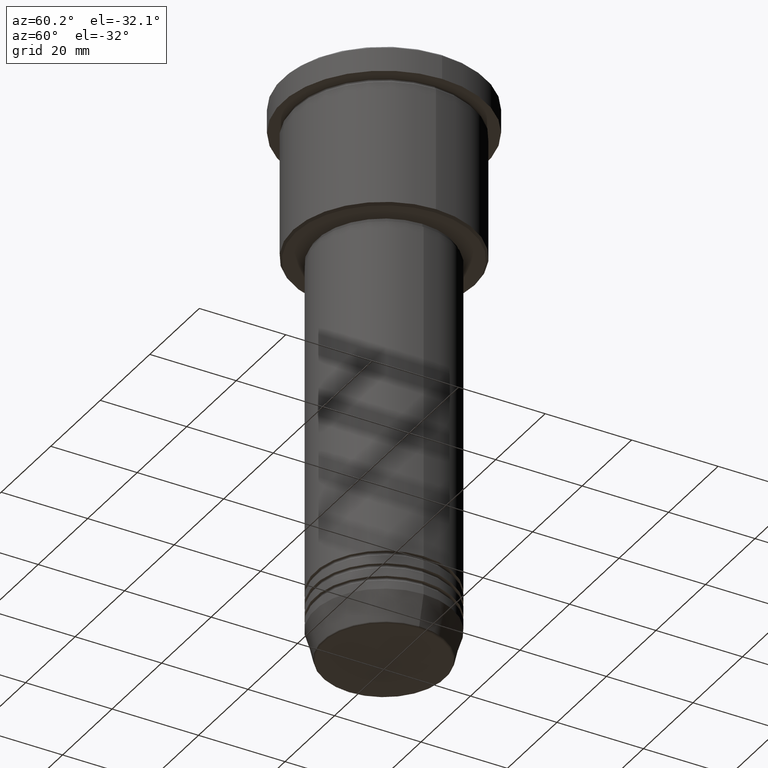
[diagram: clean part render]
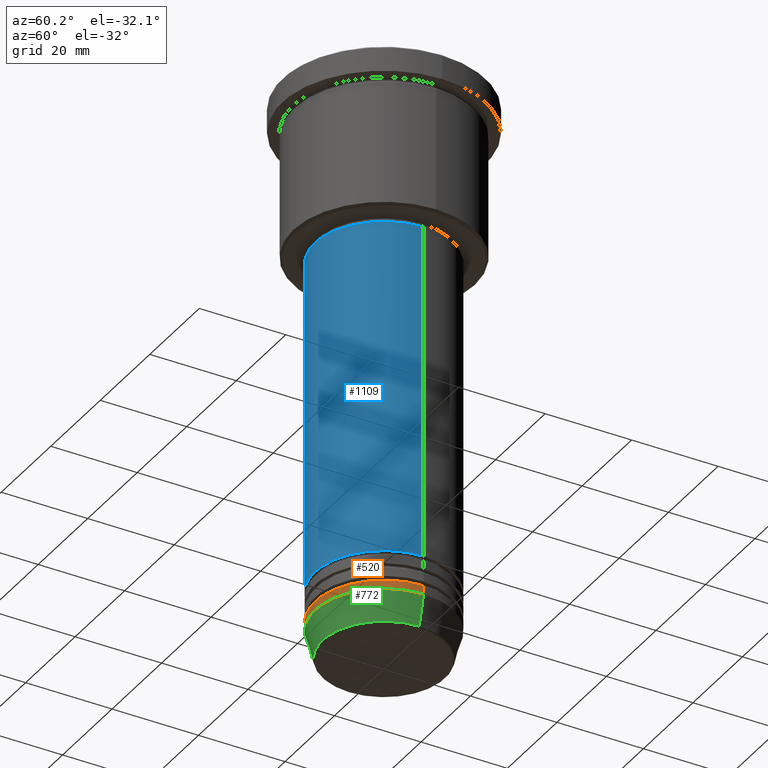
[diagram: same view with three faces highlighted in distinct colors, each labeled with its STEP entity id]
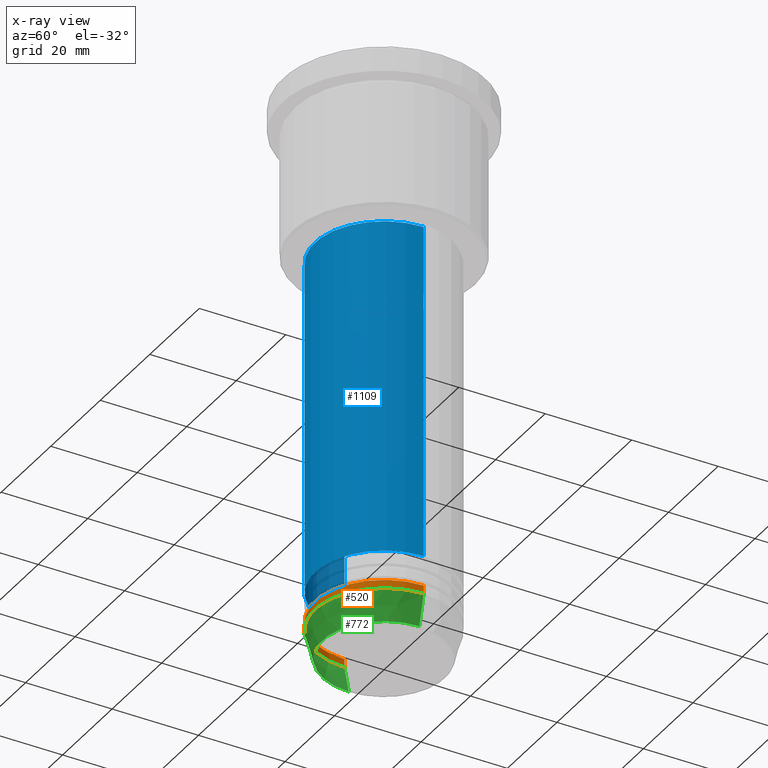
[diagram: x-ray of the same camera — body ghosted, the three highlighted faces saturated]
A machine part, auxiliary view with three faces highlighted in distinct colors.
The next image is the same camera in x-ray (body ghosted, the three faces saturated) — at least one of them is partly hidden behind the body in this view.
Their STEP definitions:

[orange] entity #520 — the highlighted cylindrical surface (partial cylindrical patch) has radius 16 mm, axis along (-0, -0, 1).
#17 = CARTESIAN_POINT ( 'NONE',  ( -16.00000000000000000, 1.959434878635765131E-15, 0.000000000000000000 ) ) ;
#39 = AXIS2_PLACEMENT_3D ( 'NONE', #535, #1161, #63 ) ;
#60 = EDGE_LOOP ( 'NONE', ( #704, #346, #579, #713 ) ) ;
#63 = DIRECTION ( 'NONE',  ( 1.000000000000000000, 0.000000000000000000, 0.000000000000000000 ) ) ;
#144 = EDGE_CURVE ( 'NONE', #538, #720, #246, .T. ) ;
#162 = EDGE_CURVE ( 'NONE', #978, #720, #839, .T. ) ;
#173 = FACE_OUTER_BOUND ( 'NONE', #60, .T. ) ;
#187 = EDGE_CURVE ( 'NONE', #693, #538, #651, .T. ) ;
#189 = CARTESIAN_POINT ( 'NONE',  ( -16.00000000000000000, 1.959434878635765131E-15, -122.0000000000000000 ) ) ;
#213 = DIRECTION ( 'NONE',  ( -0.000000000000000000, -0.000000000000000000, 1.000000000000000000 ) ) ;
#215 = CARTESIAN_POINT ( 'NONE',  ( 16.00000000000000000, 0.000000000000000000, -124.0000000000000000 ) ) ;
#224 = CIRCLE ( 'NONE', #39, 16.00000000000000000 ) ;
#246 = CIRCLE ( 'NONE', #878, 16.00000000000000000 ) ;
#346 = ORIENTED_EDGE ( 'NONE', *, *, #411, .T. ) ;
#365 = DIRECTION ( 'NONE',  ( 1.000000000000000000, 0.000000000000000000, 0.000000000000000000 ) ) ;
#367 = VECTOR ( 'NONE', #475, 1000.000000000000000 ) ;
#411 = EDGE_CURVE ( 'NONE', #693, #978, #224, .T. ) ;
#422 = CARTESIAN_POINT ( 'NONE',  ( 16.00000000000000000, 0.000000000000000000, -122.0000000000000000 ) ) ;
#469 = CARTESIAN_POINT ( 'NONE',  ( 16.00000000000000000, 0.000000000000000000, 0.000000000000000000 ) ) ;
#475 = DIRECTION ( 'NONE',  ( -0.000000000000000000, -0.000000000000000000, 1.000000000000000000 ) ) ;
#520 = ADVANCED_FACE ( 'NONE', ( #173 ), #816, .T. ) ;
#535 = CARTESIAN_POINT ( 'NONE',  ( 0.000000000000000000, 0.000000000000000000, -124.0000000000000000 ) ) ;
#538 = VERTEX_POINT ( 'NONE', #189 ) ;
#579 = ORIENTED_EDGE ( 'NONE', *, *, #162, .T. ) ;
#583 = CARTESIAN_POINT ( 'NONE',  ( -16.00000000000000000, 1.959434878635765131E-15, -124.0000000000000000 ) ) ;
#651 = LINE ( 'NONE', #17, #367 ) ;
#693 = VERTEX_POINT ( 'NONE', #583 ) ;
#704 = ORIENTED_EDGE ( 'NONE', *, *, #187, .F. ) ;
#713 = ORIENTED_EDGE ( 'NONE', *, *, #144, .F. ) ;
#720 = VERTEX_POINT ( 'NONE', #422 ) ;
#807 = VECTOR ( 'NONE', #213, 1000.000000000000000 ) ;
#816 = CYLINDRICAL_SURFACE ( 'NONE', #830, 16.00000000000000000 ) ;
#823 = CARTESIAN_POINT ( 'NONE',  ( 0.000000000000000000, 0.000000000000000000, 0.000000000000000000 ) ) ;
#830 = AXIS2_PLACEMENT_3D ( 'NONE', #823, #1181, #365 ) ;
#839 = LINE ( 'NONE', #469, #807 ) ;
#878 = AXIS2_PLACEMENT_3D ( 'NONE', #1119, #1100, #1032 ) ;
#978 = VERTEX_POINT ( 'NONE', #215 ) ;
#1032 = DIRECTION ( 'NONE',  ( 1.000000000000000000, 0.000000000000000000, 0.000000000000000000 ) ) ;
#1100 = DIRECTION ( 'NONE',  ( -0.000000000000000000, -0.000000000000000000, 1.000000000000000000 ) ) ;
#1119 = CARTESIAN_POINT ( 'NONE',  ( 0.000000000000000000, 0.000000000000000000, -122.0000000000000000 ) ) ;
#1161 = DIRECTION ( 'NONE',  ( -0.000000000000000000, -0.000000000000000000, 1.000000000000000000 ) ) ;
#1181 = DIRECTION ( 'NONE',  ( -0.000000000000000000, -0.000000000000000000, 1.000000000000000000 ) ) ;

[blue] entity #1109 — the highlighted cylindrical surface (partial cylindrical patch) has radius 16 mm, axis along (-0, -0, 1).
#28 = DIRECTION ( 'NONE',  ( 1.000000000000000000, 0.000000000000000000, 0.000000000000000000 ) ) ;
#85 = EDGE_LOOP ( 'NONE', ( #788, #1083, #952, #1044 ) ) ;
#153 = CIRCLE ( 'NONE', #550, 16.00000000000000000 ) ;
#174 = CIRCLE ( 'NONE', #764, 16.00000000000000000 ) ;
#190 = VECTOR ( 'NONE', #356, 1000.000000000000000 ) ;
#239 = CARTESIAN_POINT ( 'NONE',  ( 16.00000000000000000, 0.000000000000000000, 0.000000000000000000 ) ) ;
#304 = VECTOR ( 'NONE', #592, 1000.000000000000000 ) ;
#339 = VERTEX_POINT ( 'NONE', #412 ) ;
#356 = DIRECTION ( 'NONE',  ( -0.000000000000000000, -0.000000000000000000, 1.000000000000000000 ) ) ;
#372 = DIRECTION ( 'NONE',  ( -0.000000000000000000, -0.000000000000000000, 1.000000000000000000 ) ) ;
#412 = CARTESIAN_POINT ( 'NONE',  ( -16.00000000000000000, 1.959434878635765131E-15, -37.00000000000000000 ) ) ;
#452 = FACE_OUTER_BOUND ( 'NONE', #85, .T. ) ;
#463 = DIRECTION ( 'NONE',  ( 1.000000000000000000, 0.000000000000000000, 0.000000000000000000 ) ) ;
#467 = CARTESIAN_POINT ( 'NONE',  ( 0.000000000000000000, 0.000000000000000000, 0.000000000000000000 ) ) ;
#503 = CARTESIAN_POINT ( 'NONE',  ( -16.00000000000000000, 1.959434878635765131E-15, 0.000000000000000000 ) ) ;
#514 = CARTESIAN_POINT ( 'NONE',  ( 0.000000000000000000, 0.000000000000000000, -114.9999999999999574 ) ) ;
#534 = EDGE_CURVE ( 'NONE', #1157, #770, #153, .T. ) ;
#549 = CYLINDRICAL_SURFACE ( 'NONE', #845, 16.00000000000000000 ) ;
#550 = AXIS2_PLACEMENT_3D ( 'NONE', #514, #650, #28 ) ;
#563 = CARTESIAN_POINT ( 'NONE',  ( -16.00000000000000000, 1.959434878635765131E-15, -114.9999999999999574 ) ) ;
#592 = DIRECTION ( 'NONE',  ( -0.000000000000000000, -0.000000000000000000, 1.000000000000000000 ) ) ;
#620 = EDGE_CURVE ( 'NONE', #1157, #339, #942, .T. ) ;
#650 = DIRECTION ( 'NONE',  ( -0.000000000000000000, -0.000000000000000000, 1.000000000000000000 ) ) ;
#696 = VERTEX_POINT ( 'NONE', #778 ) ;
#722 = CARTESIAN_POINT ( 'NONE',  ( 16.00000000000000000, 0.000000000000000000, -114.9999999999999574 ) ) ;
#744 = CARTESIAN_POINT ( 'NONE',  ( 0.000000000000000000, 0.000000000000000000, -37.00000000000000000 ) ) ;
#764 = AXIS2_PLACEMENT_3D ( 'NONE', #744, #372, #1178 ) ;
#770 = VERTEX_POINT ( 'NONE', #722 ) ;
#778 = CARTESIAN_POINT ( 'NONE',  ( 16.00000000000000000, 0.000000000000000000, -37.00000000000000000 ) ) ;
#788 = ORIENTED_EDGE ( 'NONE', *, *, #620, .F. ) ;
#793 = EDGE_CURVE ( 'NONE', #770, #696, #886, .T. ) ;
#821 = DIRECTION ( 'NONE',  ( -0.000000000000000000, -0.000000000000000000, 1.000000000000000000 ) ) ;
#845 = AXIS2_PLACEMENT_3D ( 'NONE', #467, #821, #463 ) ;
#886 = LINE ( 'NONE', #239, #190 ) ;
#942 = LINE ( 'NONE', #503, #304 ) ;
#952 = ORIENTED_EDGE ( 'NONE', *, *, #793, .T. ) ;
#1044 = ORIENTED_EDGE ( 'NONE', *, *, #1056, .F. ) ;
#1056 = EDGE_CURVE ( 'NONE', #339, #696, #174, .T. ) ;
#1083 = ORIENTED_EDGE ( 'NONE', *, *, #534, .T. ) ;
#1109 = ADVANCED_FACE ( 'NONE', ( #452 ), #549, .T. ) ;
#1157 = VERTEX_POINT ( 'NONE', #563 ) ;
#1178 = DIRECTION ( 'NONE',  ( 1.000000000000000000, 0.000000000000000000, 0.000000000000000000 ) ) ;

[green] entity #772 — the highlighted conical surface has half-angle 15 deg.
#39 = AXIS2_PLACEMENT_3D ( 'NONE', #535, #1161, #63 ) ;
#61 = DIRECTION ( 'NONE',  ( -0.000000000000000000, -0.000000000000000000, 1.000000000000000000 ) ) ;
#63 = DIRECTION ( 'NONE',  ( 1.000000000000000000, 0.000000000000000000, 0.000000000000000000 ) ) ;
#72 = DIRECTION ( 'NONE',  ( 1.000000000000000000, 0.000000000000000000, 0.000000000000000000 ) ) ;
#182 = DIRECTION ( 'NONE',  ( 0.2588190451025213501, 0.000000000000000000, 0.9659258262890680902 ) ) ;
#215 = CARTESIAN_POINT ( 'NONE',  ( 16.00000000000000000, 0.000000000000000000, -124.0000000000000000 ) ) ;
#224 = CIRCLE ( 'NONE', #39, 16.00000000000000000 ) ;
#226 = VECTOR ( 'NONE', #182, 1000.000000000000000 ) ;
#253 = DIRECTION ( 'NONE',  ( -0.000000000000000000, -0.000000000000000000, 1.000000000000000000 ) ) ;
#260 = ORIENTED_EDGE ( 'NONE', *, *, #1031, .F. ) ;
#318 = ORIENTED_EDGE ( 'NONE', *, *, #411, .F. ) ;
#411 = EDGE_CURVE ( 'NONE', #693, #978, #224, .T. ) ;
#415 = ORIENTED_EDGE ( 'NONE', *, *, #836, .T. ) ;
#426 = DIRECTION ( 'NONE',  ( 1.000000000000000000, 0.000000000000000000, 0.000000000000000000 ) ) ;
#445 = LINE ( 'NONE', #790, #530 ) ;
#530 = VECTOR ( 'NONE', #1150, 1000.000000000000000 ) ;
#535 = CARTESIAN_POINT ( 'NONE',  ( 0.000000000000000000, 0.000000000000000000, -124.0000000000000000 ) ) ;
#583 = CARTESIAN_POINT ( 'NONE',  ( -16.00000000000000000, 1.959434878635765131E-15, -124.0000000000000000 ) ) ;
#608 = EDGE_LOOP ( 'NONE', ( #260, #1059, #415, #318 ) ) ;
#693 = VERTEX_POINT ( 'NONE', #583 ) ;
#772 = ADVANCED_FACE ( 'NONE', ( #1173 ), #785, .T. ) ;
#785 = CONICAL_SURFACE ( 'NONE', #843, 16.00000000000000000, 0.2617993877991500740 ) ;
#790 = CARTESIAN_POINT ( 'NONE',  ( -16.00000000000000000, 1.959434878635765131E-15, -124.0000000000000000 ) ) ;
#808 = VERTEX_POINT ( 'NONE', #1159 ) ;
#820 = EDGE_CURVE ( 'NONE', #808, #1086, #1025, .T. ) ;
#836 = EDGE_CURVE ( 'NONE', #1086, #978, #925, .T. ) ;
#843 = AXIS2_PLACEMENT_3D ( 'NONE', #1074, #253, #72 ) ;
#925 = LINE ( 'NONE', #1021, #226 ) ;
#966 = CARTESIAN_POINT ( 'NONE',  ( 0.000000000000000000, 0.000000000000000000, -130.6294095225512706 ) ) ;
#978 = VERTEX_POINT ( 'NONE', #215 ) ;
#1017 = CARTESIAN_POINT ( 'NONE',  ( 14.22365507213718949, 0.000000000000000000, -130.6294095225512706 ) ) ;
#1021 = CARTESIAN_POINT ( 'NONE',  ( 16.00000000000000000, 0.000000000000000000, -124.0000000000000000 ) ) ;
#1025 = CIRCLE ( 'NONE', #1160, 14.22365507213718949 ) ;
#1031 = EDGE_CURVE ( 'NONE', #808, #693, #445, .T. ) ;
#1059 = ORIENTED_EDGE ( 'NONE', *, *, #820, .T. ) ;
#1074 = CARTESIAN_POINT ( 'NONE',  ( 0.000000000000000000, 0.000000000000000000, -124.0000000000000000 ) ) ;
#1086 = VERTEX_POINT ( 'NONE', #1017 ) ;
#1150 = DIRECTION ( 'NONE',  ( -0.2588190451025213501, 3.169619151431772337E-17, 0.9659258262890680902 ) ) ;
#1159 = CARTESIAN_POINT ( 'NONE',  ( -14.22365507213718949, 1.850665122131323731E-15, -130.6294095225512706 ) ) ;
#1160 = AXIS2_PLACEMENT_3D ( 'NONE', #966, #61, #426 ) ;
#1161 = DIRECTION ( 'NONE',  ( -0.000000000000000000, -0.000000000000000000, 1.000000000000000000 ) ) ;
#1173 = FACE_OUTER_BOUND ( 'NONE', #608, .T. ) ;